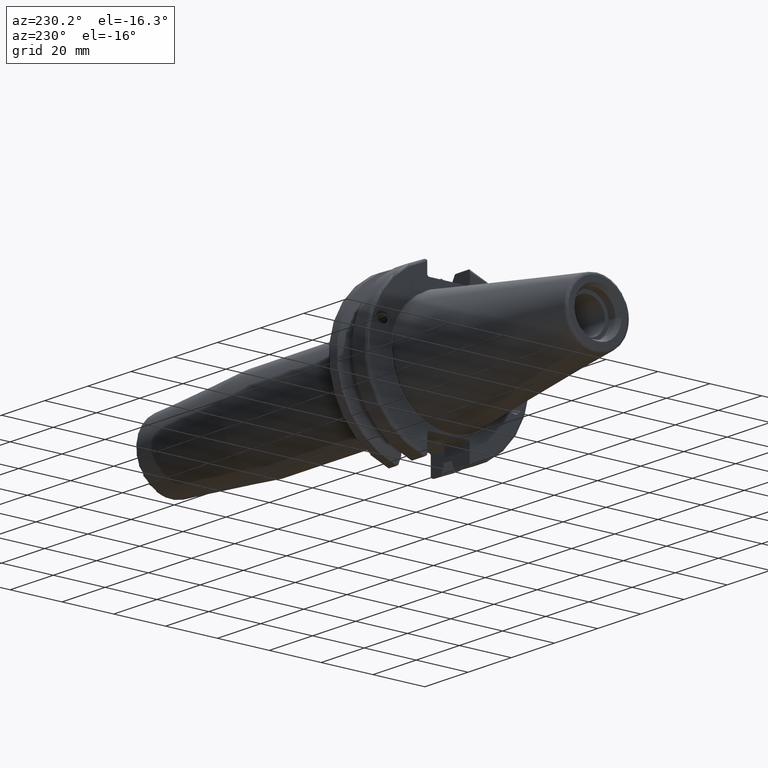
[diagram: clean part render]
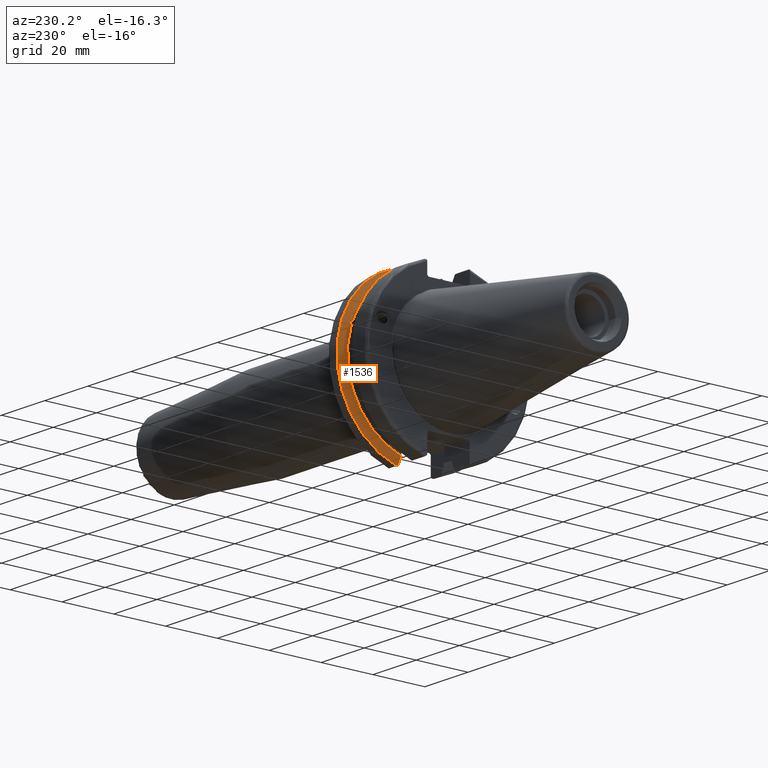
[diagram: same view with one face highlighted and labeled with its STEP entity id]
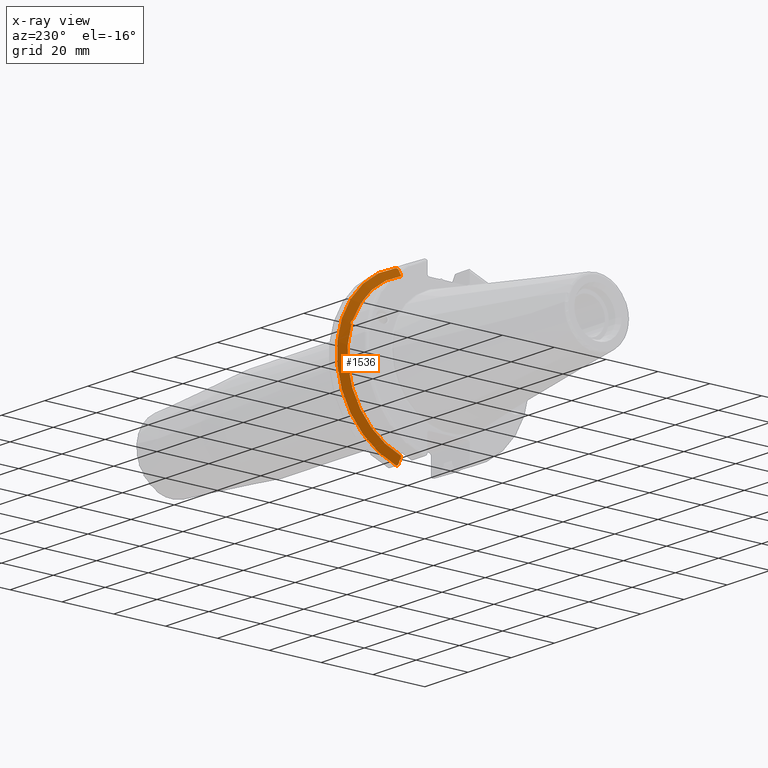
[diagram: x-ray of the same camera — body ghosted, the highlighted face saturated]
A machine part, auxiliary view. The second image highlights one B-rep face of the part: STEP entity #1536.
The next image is the same camera in x-ray: the body ghosted, the highlighted face saturated — about 0% of this face is hidden behind the body in this view.
In plain terms, the highlighted conical surface has half-angle 60 deg.
Its self-contained STEP definition (entity closure, byte-faithful):
#19=(
BOUNDED_CURVE()
B_SPLINE_CURVE(2,(#2720,#2721,#2722),.UNSPECIFIED.,.F.,.F.)
B_SPLINE_CURVE_WITH_KNOTS((3,3),(0.,0.276549142795285),.UNSPECIFIED.)
CURVE()
GEOMETRIC_REPRESENTATION_ITEM()
RATIONAL_B_SPLINE_CURVE((1.,1.00095203903482,1.00031614444868))
REPRESENTATION_ITEM('')
);
#20=(
BOUNDED_CURVE()
B_SPLINE_CURVE(2,(#2724,#2725,#2726),.UNSPECIFIED.,.F.,.F.)
B_SPLINE_CURVE_WITH_KNOTS((3,3),(0.,0.0639048713675832),.UNSPECIFIED.)
CURVE()
GEOMETRIC_REPRESENTATION_ITEM()
RATIONAL_B_SPLINE_CURVE((1.,1.0002844421829,1.00047644010585))
REPRESENTATION_ITEM('')
);
#21=(
BOUNDED_CURVE()
B_SPLINE_CURVE(2,(#2730,#2731,#2732),.UNSPECIFIED.,.F.,.F.)
B_SPLINE_CURVE_WITH_KNOTS((3,3),(0.329353533631253,0.393258405001026),
 .UNSPECIFIED.)
CURVE()
GEOMETRIC_REPRESENTATION_ITEM()
RATIONAL_B_SPLINE_CURVE((1.00047644010593,1.00028444218295,1.))
REPRESENTATION_ITEM('')
);
#22=(
BOUNDED_CURVE()
B_SPLINE_CURVE(2,(#2734,#2735,#2736),.UNSPECIFIED.,.F.,.F.)
B_SPLINE_CURVE_WITH_KNOTS((3,3),(0.0550586467398919,0.331607789535851),
 .UNSPECIFIED.)
CURVE()
GEOMETRIC_REPRESENTATION_ITEM()
RATIONAL_B_SPLINE_CURVE((1.00031614444973,1.00095203903796,1.))
REPRESENTATION_ITEM('')
);
#42=B_SPLINE_CURVE_WITH_KNOTS('',3,(#2645,#2646,#2647,#2648,#2649,#2650,
#2651,#2652),.UNSPECIFIED.,.F.,.F.,(4,2,2,4),(0.451995700189026,0.464547828547662,
0.504528771685167,0.544509714822672),.UNSPECIFIED.);
#46=B_SPLINE_CURVE_WITH_KNOTS('',3,(#2707,#2708,#2709,#2710,#2711,#2712,
#2713,#2714),.UNSPECIFIED.,.F.,.F.,(4,2,2,4),(0.544509714822672,0.584490657960178,
0.624471601097683,0.637023729456321),.UNSPECIFIED.);
#211=FACE_OUTER_BOUND('',#310,.T.);
#310=EDGE_LOOP('',(#1217,#1218,#1219,#1220,#1221,#1222,#1223,#1224,#1225));
#594=CIRCLE('',#1706,28.9593772964944);
#595=CIRCLE('',#1707,31.75);
#596=CIRCLE('',#1708,28.9593772964944);
#709=VERTEX_POINT('',#2642);
#710=VERTEX_POINT('',#2644);
#717=VERTEX_POINT('',#2705);
#718=VERTEX_POINT('',#2717);
#719=VERTEX_POINT('',#2719);
#720=VERTEX_POINT('',#2723);
#721=VERTEX_POINT('',#2727);
#722=VERTEX_POINT('',#2729);
#723=VERTEX_POINT('',#2733);
#895=EDGE_CURVE('',#710,#709,#42,.T.);
#903=EDGE_CURVE('',#709,#717,#46,.T.);
#904=EDGE_CURVE('',#717,#718,#594,.T.);
#905=EDGE_CURVE('',#718,#719,#19,.T.);
#906=EDGE_CURVE('',#720,#719,#20,.T.);
#907=EDGE_CURVE('',#721,#720,#595,.T.);
#908=EDGE_CURVE('',#722,#721,#21,.T.);
#909=EDGE_CURVE('',#722,#723,#22,.T.);
#910=EDGE_CURVE('',#723,#710,#596,.T.);
#1217=ORIENTED_EDGE('',*,*,#895,.T.);
#1218=ORIENTED_EDGE('',*,*,#903,.T.);
#1219=ORIENTED_EDGE('',*,*,#904,.T.);
#1220=ORIENTED_EDGE('',*,*,#905,.T.);
#1221=ORIENTED_EDGE('',*,*,#906,.F.);
#1222=ORIENTED_EDGE('',*,*,#907,.F.);
#1223=ORIENTED_EDGE('',*,*,#908,.F.);
#1224=ORIENTED_EDGE('',*,*,#909,.T.);
#1225=ORIENTED_EDGE('',*,*,#910,.T.);
#1492=CONICAL_SURFACE('',#1705,30.3546886482472,1.0471975511966);
#1536=ADVANCED_FACE('',(#211),#1492,.T.);
#1705=AXIS2_PLACEMENT_3D('',#2716,#2024,#2025);
#1706=AXIS2_PLACEMENT_3D('',#2718,#2026,#2027);
#1707=AXIS2_PLACEMENT_3D('',#2728,#2028,#2029);
#1708=AXIS2_PLACEMENT_3D('',#2737,#2030,#2031);
#2024=DIRECTION('center_axis',(1.,0.,0.));
#2025=DIRECTION('ref_axis',(0.,1.,0.));
#2026=DIRECTION('center_axis',(1.,0.,0.));
#2027=DIRECTION('ref_axis',(0.,0.,-1.));
#2028=DIRECTION('center_axis',(1.,0.,0.));
#2029=DIRECTION('ref_axis',(0.,0.,-1.));
#2030=DIRECTION('center_axis',(1.,0.,0.));
#2031=DIRECTION('ref_axis',(0.,0.,-1.));
#2642=CARTESIAN_POINT('',(13.2341,27.51401829017,10.0142836826778));
#2644=CARTESIAN_POINT('',(13.0491,27.4956274489925,9.09043478536247));
#2645=CARTESIAN_POINT('Ctrl Pts',(13.0491,27.4956274489925,9.09043478536247));
#2646=CARTESIAN_POINT('Ctrl Pts',(13.0632204071996,27.5087667900418,9.12860597076219));
#2647=CARTESIAN_POINT('Ctrl Pts',(13.0766929817857,27.5206055003513,9.16696618806878));
#2648=CARTESIAN_POINT('Ctrl Pts',(13.130081441159,27.5642934663232,9.32791534028656));
#2649=CARTESIAN_POINT('Ctrl Pts',(13.1682197084175,27.5867382255984,9.46717946402648));
#2650=CARTESIAN_POINT('Ctrl Pts',(13.2204106446058,27.5847569104122,9.74771639360672));
#2651=CARTESIAN_POINT('Ctrl Pts',(13.2341,27.559599249844,9.8890510252165));
#2652=CARTESIAN_POINT('Ctrl Pts',(13.2341,27.51401829017,10.0142836826778));
#2705=CARTESIAN_POINT('',(13.0491,26.9060914640648,10.7101715919071));
#2707=CARTESIAN_POINT('Ctrl Pts',(13.2341,27.51401829017,10.0142836826778));
#2708=CARTESIAN_POINT('Ctrl Pts',(13.2341,27.4684373304961,10.139516340139));
#2709=CARTESIAN_POINT('Ctrl Pts',(13.2204106446058,27.3968610665578,10.2639559818059));
#2710=CARTESIAN_POINT('Ctrl Pts',(13.1682197084175,27.2180531796526,10.4801333026531));
#2711=CARTESIAN_POINT('Ctrl Pts',(13.130081441159,27.1113422433189,10.5723885976054));
#2712=CARTESIAN_POINT('Ctrl Pts',(13.0766929817857,26.9744191989197,10.6676007180674));
#2713=CARTESIAN_POINT('Ctrl Pts',(13.0632204071996,26.9406927482839,10.6893765730703));
#2714=CARTESIAN_POINT('Ctrl Pts',(13.0491,26.9060914640648,10.7101715919071));
#2716=CARTESIAN_POINT('Origin',(13.8546833845378,0.,0.));
#2717=CARTESIAN_POINT('',(13.0491,8.19,27.7771386827498));
#2718=CARTESIAN_POINT('Origin',(13.0491,0.,0.));
#2719=CARTESIAN_POINT('',(14.3815146964874,8.19,30.1755016258903));
#2720=CARTESIAN_POINT('Ctrl Pts',(13.0491,8.19,27.7771386827498));
#2721=CARTESIAN_POINT('Ctrl Pts',(13.6877364384881,8.19,28.930368953992));
#2722=CARTESIAN_POINT('Ctrl Pts',(14.3815146964874,8.19,30.1755016258903));
#2723=CARTESIAN_POINT('',(14.6602667690756,8.67204822802685,30.5427254764662));
#2724=CARTESIAN_POINT('Ctrl Pts',(14.6602667690756,8.67204822802687,30.5427254764662));
#2725=CARTESIAN_POINT('Ctrl Pts',(14.5192085187837,8.42917748262644,30.357706789263));
#2726=CARTESIAN_POINT('Ctrl Pts',(14.3815146964874,8.19,30.1755016258903));
#2727=CARTESIAN_POINT('',(14.6602667690756,8.67204822802685,-30.5427254764662));
#2728=CARTESIAN_POINT('Origin',(14.6602667690756,0.,0.));
#2729=CARTESIAN_POINT('',(14.3815146964874,8.18999999999999,-30.1755016258903));
#2730=CARTESIAN_POINT('Ctrl Pts',(14.3815146964874,8.18999999999999,-30.1755016258903));
#2731=CARTESIAN_POINT('Ctrl Pts',(14.5192085187884,8.4291774826346,-30.3577067892692));
#2732=CARTESIAN_POINT('Ctrl Pts',(14.6602667690756,8.67204822802686,-30.5427254764662));
#2733=CARTESIAN_POINT('',(13.0491,8.19,-27.7771386827498));
#2734=CARTESIAN_POINT('Ctrl Pts',(14.3815146964874,8.18999999999999,-30.1755016258903));
#2735=CARTESIAN_POINT('Ctrl Pts',(13.6877364384816,8.18999999999999,-28.9303689539805));
#2736=CARTESIAN_POINT('Ctrl Pts',(13.0491,8.19,-27.7771386827498));
#2737=CARTESIAN_POINT('Origin',(13.0491,0.,0.));